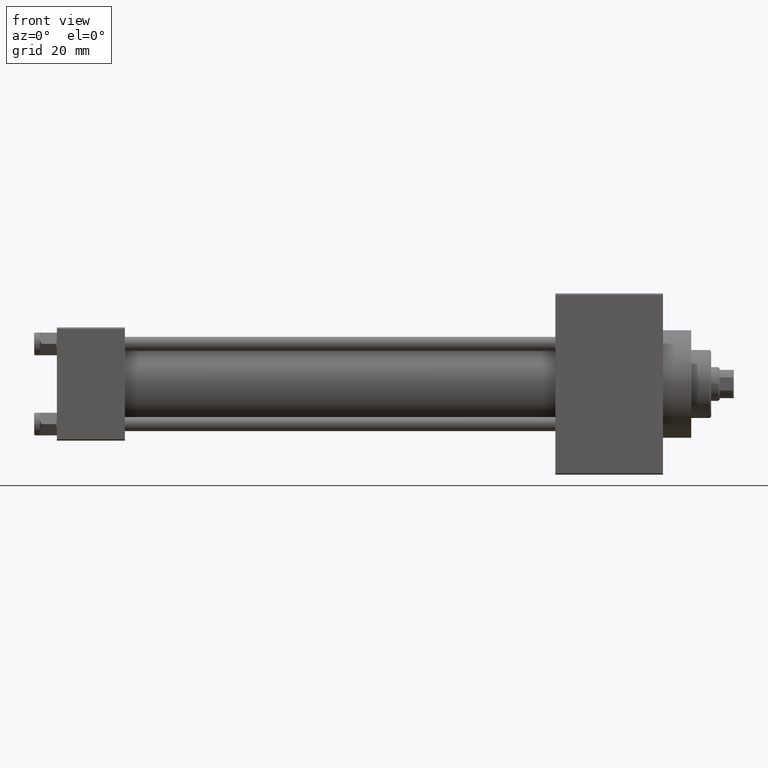
[diagram: clean part render]
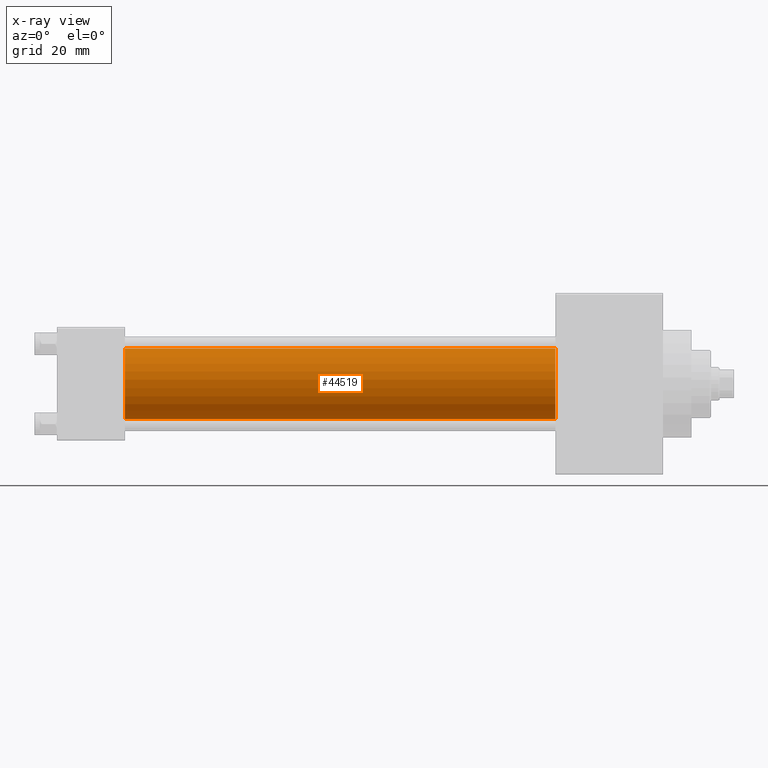
[diagram: x-ray — body ghosted, one internal face saturated and labeled with its STEP entity id]
A machine part, front view, then the same camera in x-ray: the body is ghosted and one INTERNAL B-rep face — a face not visible from any outside direction — is saturated and labeled: STEP entity #44519.
In plain terms, the highlighted cylindrical surface (edge-blend (fillet) strip) has radius 12.5 mm, axis along (-1, -0, -0).
Its self-contained STEP definition (entity closure, byte-faithful):
#1068 = CARTESIAN_POINT ( 'NONE',  ( 176.0000000000000000, -1.071276715031019515E-15, -12.49999999999999645 ) ) ;
#1303 = DIRECTION ( 'NONE',  ( -1.000000000000000000, -0.000000000000000000, -0.000000000000000000 ) ) ;
#1582 = EDGE_CURVE ( 'NONE', #3446, #21269, #5878, .T. ) ;
#3231 = VECTOR ( 'NONE', #24293, 1000.000000000000000 ) ;
#3446 = VERTEX_POINT ( 'NONE', #11944 ) ;
#5878 = LINE ( 'NONE', #27889, #3231 ) ;
#6110 = DIRECTION ( 'NONE',  ( 0.000000000000000000, 0.000000000000000000, -1.000000000000000000 ) ) ;
#6350 = CARTESIAN_POINT ( 'NONE',  ( 24.00000000000000000, -2.602085213965210642E-15, 0.000000000000000000 ) ) ;
#8915 = FACE_OUTER_BOUND ( 'NONE', #35264, .T. ) ;
#10237 = AXIS2_PLACEMENT_3D ( 'NONE', #28613, #24776, #6110 ) ;
#10577 = CIRCLE ( 'NONE', #17424, 12.49999999999999645 ) ;
#11944 = CARTESIAN_POINT ( 'NONE',  ( 176.0000000000000000, -2.602085213965210642E-15, 12.49999999999999645 ) ) ;
#15273 = EDGE_CURVE ( 'NONE', #3446, #32850, #46120, .T. ) ;
#16264 = ORIENTED_EDGE ( 'NONE', *, *, #1582, .F. ) ;
#16576 = CARTESIAN_POINT ( 'NONE',  ( 24.00000000000000000, -1.071276715031019515E-15, -12.49999999999999645 ) ) ;
#17424 = AXIS2_PLACEMENT_3D ( 'NONE', #6350, #17802, #32189 ) ;
#17802 = DIRECTION ( 'NONE',  ( 1.000000000000000000, 0.000000000000000000, 0.000000000000000000 ) ) ;
#21269 = VERTEX_POINT ( 'NONE', #38844 ) ;
#23336 = ORIENTED_EDGE ( 'NONE', *, *, #15273, .T. ) ;
#23524 = CYLINDRICAL_SURFACE ( 'NONE', #43781, 12.49999999999999645 ) ;
#24198 = VERTEX_POINT ( 'NONE', #16576 ) ;
#24293 = DIRECTION ( 'NONE',  ( -1.000000000000000000, -0.000000000000000000, -0.000000000000000000 ) ) ;
#24776 = DIRECTION ( 'NONE',  ( 1.000000000000000000, 0.000000000000000000, 0.000000000000000000 ) ) ;
#27889 = CARTESIAN_POINT ( 'NONE',  ( 176.0000000000000000, -2.602085213965210642E-15, 12.49999999999999645 ) ) ;
#28613 = CARTESIAN_POINT ( 'NONE',  ( 176.0000000000000000, -2.602085213965210642E-15, 0.000000000000000000 ) ) ;
#29595 = EDGE_CURVE ( 'NONE', #21269, #24198, #10577, .T. ) ;
#32189 = DIRECTION ( 'NONE',  ( 0.000000000000000000, 0.000000000000000000, -1.000000000000000000 ) ) ;
#32850 = VERTEX_POINT ( 'NONE', #42797 ) ;
#33845 = LINE ( 'NONE', #1068, #35227 ) ;
#35227 = VECTOR ( 'NONE', #1303, 1000.000000000000000 ) ;
#35264 = EDGE_LOOP ( 'NONE', ( #23336, #44094, #39974, #16264 ) ) ;
#35653 = CARTESIAN_POINT ( 'NONE',  ( 176.0000000000000000, -2.602085213965210642E-15, 0.000000000000000000 ) ) ;
#35969 = EDGE_CURVE ( 'NONE', #32850, #24198, #33845, .T. ) ;
#38844 = CARTESIAN_POINT ( 'NONE',  ( 24.00000000000000000, -2.602085213965210642E-15, 12.49999999999999645 ) ) ;
#39466 = DIRECTION ( 'NONE',  ( 0.000000000000000000, 0.000000000000000000, 1.000000000000000000 ) ) ;
#39974 = ORIENTED_EDGE ( 'NONE', *, *, #29595, .F. ) ;
#42797 = CARTESIAN_POINT ( 'NONE',  ( 176.0000000000000000, -1.071276715031019515E-15, -12.49999999999999645 ) ) ;
#43042 = DIRECTION ( 'NONE',  ( -1.000000000000000000, -0.000000000000000000, -0.000000000000000000 ) ) ;
#43781 = AXIS2_PLACEMENT_3D ( 'NONE', #35653, #43042, #39466 ) ;
#44094 = ORIENTED_EDGE ( 'NONE', *, *, #35969, .T. ) ;
#44519 = ADVANCED_FACE ( 'NONE', ( #8915 ), #23524, .F. ) ;
#46120 = CIRCLE ( 'NONE', #10237, 12.49999999999999645 ) ;